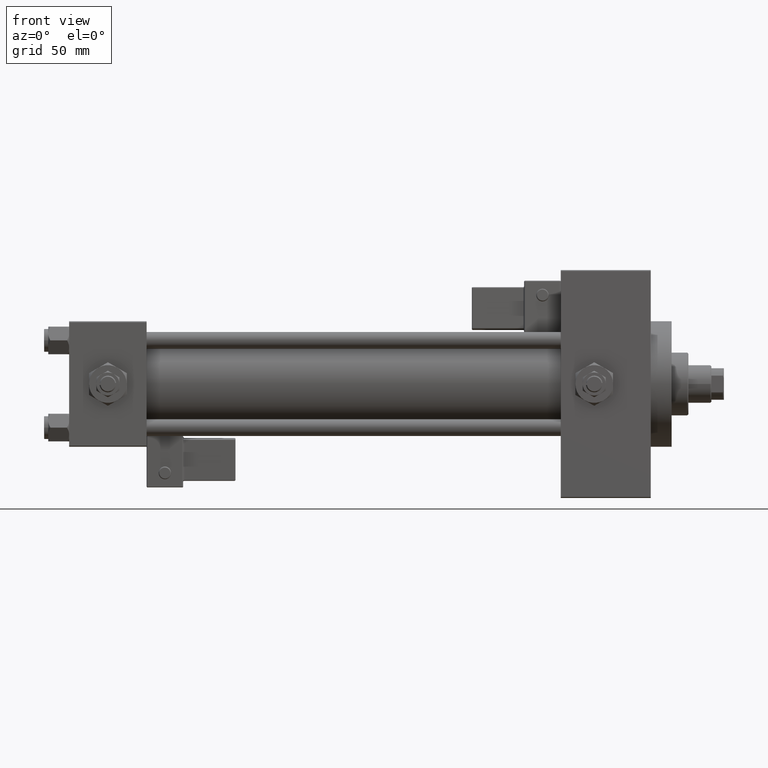
[diagram: clean part render]
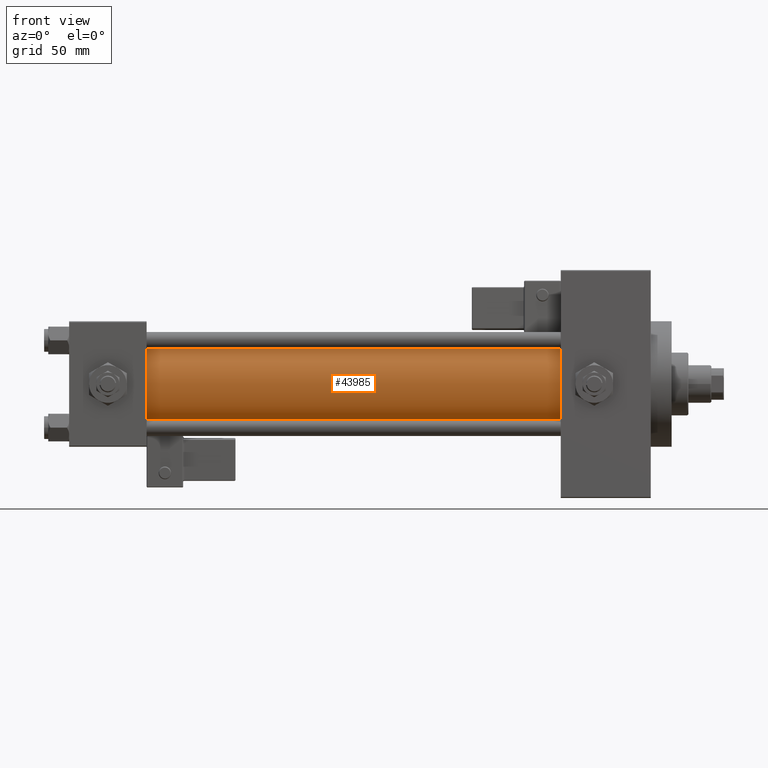
[diagram: same view with one face highlighted and labeled with its STEP entity id]
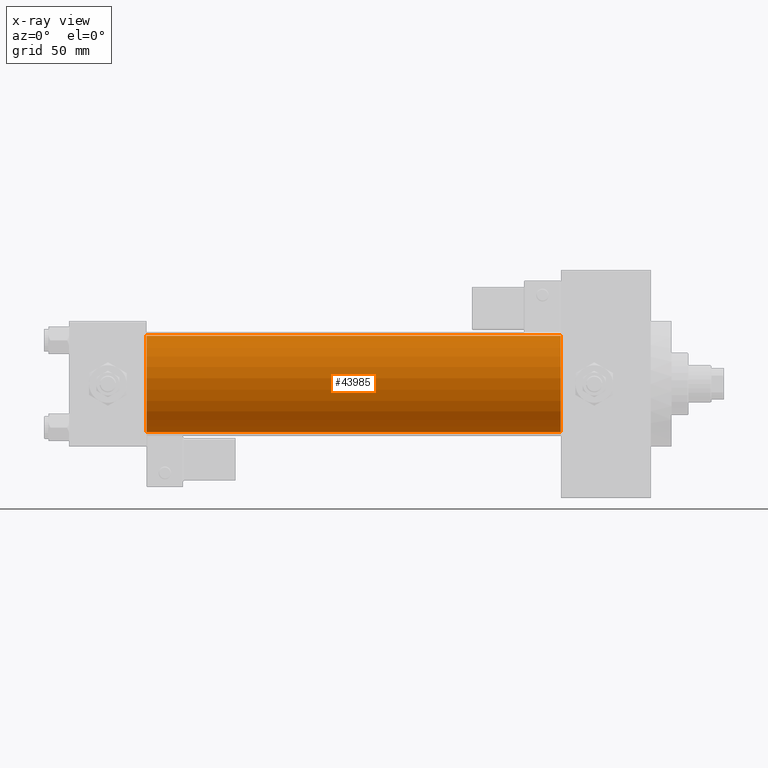
[diagram: x-ray of the same camera — body ghosted, the highlighted face saturated]
A machine part, front view. The second image highlights one B-rep face of the part: STEP entity #43985.
The next image is the same camera in x-ray: the body ghosted, the highlighted face saturated — about 0% of this face is hidden behind the body in this view.
In plain terms, the highlighted cylindrical surface (partial cylindrical patch) has radius 23 mm, axis along (-1, -0, -0).
Its self-contained STEP definition (entity closure, byte-faithful):
#1899 = AXIS2_PLACEMENT_3D ( 'NONE', #2051, #13755, #29629 ) ;
#1953 = CARTESIAN_POINT ( 'NONE',  ( 235.0000000000000284, -2.602085213965210642E-15, 0.000000000000000000 ) ) ;
#2051 = CARTESIAN_POINT ( 'NONE',  ( 235.0000000000000284, -2.602085213965210642E-15, 0.000000000000000000 ) ) ;
#2804 = DIRECTION ( 'NONE',  ( -1.000000000000000000, -0.000000000000000000, -0.000000000000000000 ) ) ;
#4603 = VERTEX_POINT ( 'NONE', #34484 ) ;
#4752 = VECTOR ( 'NONE', #2804, 1000.000000000000000 ) ;
#8261 = VERTEX_POINT ( 'NONE', #22609 ) ;
#9692 = AXIS2_PLACEMENT_3D ( 'NONE', #1953, #17837, #25882 ) ;
#13755 = DIRECTION ( 'NONE',  ( 1.000000000000000000, 0.000000000000000000, 0.000000000000000000 ) ) ;
#13824 = LINE ( 'NONE', #14768, #4752 ) ;
#14119 = VERTEX_POINT ( 'NONE', #19361 ) ;
#14768 = CARTESIAN_POINT ( 'NONE',  ( 235.0000000000000284, 2.146024240737016609E-16, -23.00000000000000000 ) ) ;
#15344 = EDGE_LOOP ( 'NONE', ( #21134, #29823, #26731, #36155 ) ) ;
#16890 = CARTESIAN_POINT ( 'NONE',  ( 235.0000000000000284, -2.602085213965210642E-15, 23.00000000000000000 ) ) ;
#17837 = DIRECTION ( 'NONE',  ( -1.000000000000000000, -0.000000000000000000, -0.000000000000000000 ) ) ;
#18496 = CIRCLE ( 'NONE', #1899, 23.00000000000000000 ) ;
#18804 = DIRECTION ( 'NONE',  ( 1.000000000000000000, -0.000000000000000000, 0.000000000000000000 ) ) ;
#19361 = CARTESIAN_POINT ( 'NONE',  ( 235.0000000000000284, 2.146024240737016609E-16, -23.00000000000000000 ) ) ;
#21134 = ORIENTED_EDGE ( 'NONE', *, *, #42442, .F. ) ;
#22273 = CIRCLE ( 'NONE', #35572, 23.00000000000000000 ) ;
#22609 = CARTESIAN_POINT ( 'NONE',  ( 37.00000000000000711, -2.602085213965210642E-15, 23.00000000000000000 ) ) ;
#23408 = CARTESIAN_POINT ( 'NONE',  ( 235.0000000000000284, -2.602085213965210642E-15, 23.00000000000000000 ) ) ;
#24446 = LINE ( 'NONE', #23408, #44178 ) ;
#24589 = VERTEX_POINT ( 'NONE', #16890 ) ;
#25861 = DIRECTION ( 'NONE',  ( 0.000000000000000000, 0.000000000000000000, 1.000000000000000000 ) ) ;
#25882 = DIRECTION ( 'NONE',  ( 0.000000000000000000, 0.000000000000000000, 1.000000000000000000 ) ) ;
#26731 = ORIENTED_EDGE ( 'NONE', *, *, #27023, .T. ) ;
#27023 = EDGE_CURVE ( 'NONE', #24589, #8261, #24446, .T. ) ;
#29277 = CYLINDRICAL_SURFACE ( 'NONE', #9692, 23.00000000000000000 ) ;
#29629 = DIRECTION ( 'NONE',  ( 0.000000000000000000, 0.000000000000000000, -1.000000000000000000 ) ) ;
#29823 = ORIENTED_EDGE ( 'NONE', *, *, #33040, .F. ) ;
#33040 = EDGE_CURVE ( 'NONE', #24589, #14119, #18496, .T. ) ;
#34484 = CARTESIAN_POINT ( 'NONE',  ( 37.00000000000000711, 2.146024240737016609E-16, -23.00000000000000000 ) ) ;
#35572 = AXIS2_PLACEMENT_3D ( 'NONE', #38080, #18804, #25861 ) ;
#36155 = ORIENTED_EDGE ( 'NONE', *, *, #47152, .T. ) ;
#36414 = DIRECTION ( 'NONE',  ( -1.000000000000000000, -0.000000000000000000, -0.000000000000000000 ) ) ;
#38080 = CARTESIAN_POINT ( 'NONE',  ( 37.00000000000000711, -2.602085213965210642E-15, 0.000000000000000000 ) ) ;
#38101 = FACE_OUTER_BOUND ( 'NONE', #15344, .T. ) ;
#42442 = EDGE_CURVE ( 'NONE', #14119, #4603, #13824, .T. ) ;
#43985 = ADVANCED_FACE ( 'NONE', ( #38101 ), #29277, .T. ) ;
#44178 = VECTOR ( 'NONE', #36414, 1000.000000000000000 ) ;
#47152 = EDGE_CURVE ( 'NONE', #8261, #4603, #22273, .T. ) ;